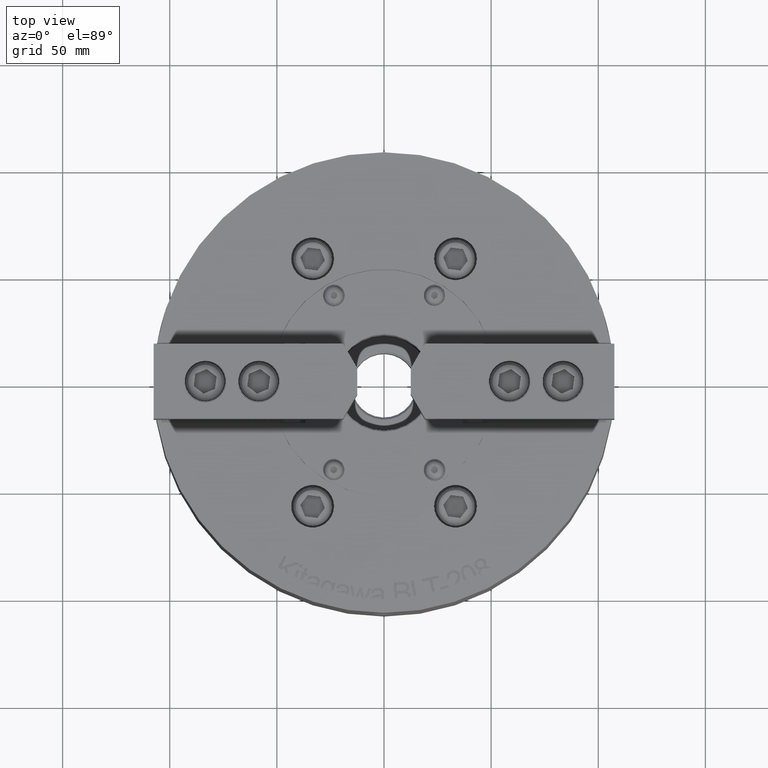
[diagram: clean part render]
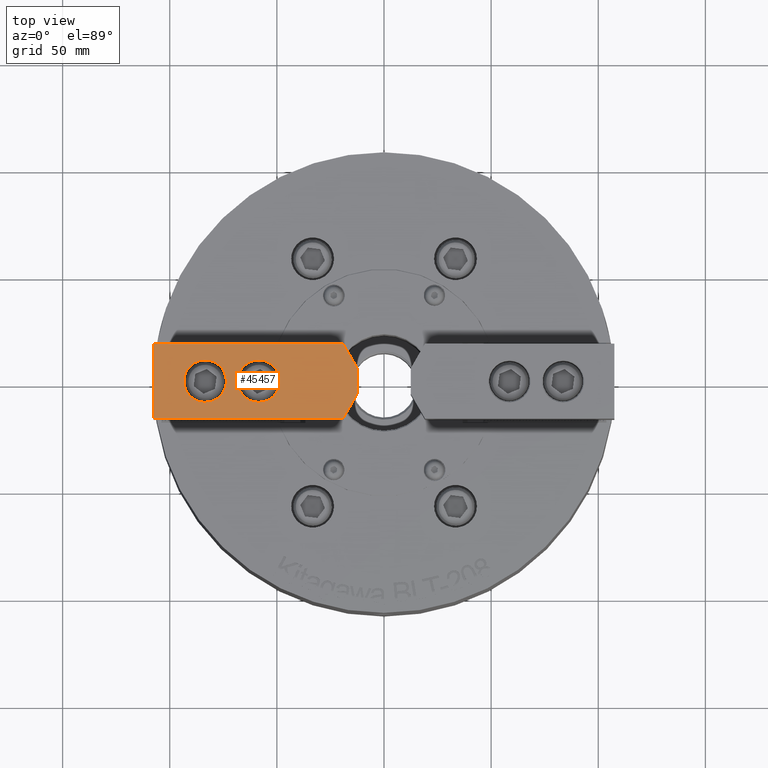
[diagram: same view with one face highlighted and labeled with its STEP entity id]
A machine part, top view. The second image highlights one B-rep face of the part: STEP entity #45457.
In plain terms, the highlighted planar face has unit normal (0, 0, -1).
Its self-contained STEP definition (entity closure, byte-faithful):
#1746=CIRCLE('',#48506,9.9);
#1747=CIRCLE('',#48507,9.9);
#13128=ORIENTED_EDGE('',*,*,#21609,.T.);
#13129=ORIENTED_EDGE('',*,*,#21602,.F.);
#13130=ORIENTED_EDGE('',*,*,#21136,.F.);
#13131=ORIENTED_EDGE('',*,*,#21597,.F.);
#13132=ORIENTED_EDGE('',*,*,#21151,.T.);
#13133=ORIENTED_EDGE('',*,*,#21600,.F.);
#13134=ORIENTED_EDGE('',*,*,#21610,.T.);
#13135=ORIENTED_EDGE('',*,*,#21611,.T.);
#21136=EDGE_CURVE('',#25953,#25954,#31150,.T.);
#21151=EDGE_CURVE('',#25968,#25967,#31164,.T.);
#21597=EDGE_CURVE('',#25968,#25953,#31560,.T.);
#21600=EDGE_CURVE('',#26176,#25967,#31563,.T.);
#21602=EDGE_CURVE('',#25954,#26178,#31565,.T.);
#21609=EDGE_CURVE('',#26176,#26178,#31570,.T.);
#21610=EDGE_CURVE('',#26181,#26181,#1746,.T.);
#21611=EDGE_CURVE('',#26182,#26182,#1747,.T.);
#25953=VERTEX_POINT('',#74585);
#25954=VERTEX_POINT('',#74587);
#25967=VERTEX_POINT('',#74617);
#25968=VERTEX_POINT('',#74619);
#26176=VERTEX_POINT('',#75377);
#26178=VERTEX_POINT('',#75383);
#26181=VERTEX_POINT('',#75396);
#26182=VERTEX_POINT('',#75398);
#31150=LINE('',#74586,#36683);
#31164=LINE('',#74618,#36697);
#31560=LINE('',#75372,#37093);
#31563=LINE('',#75378,#37096);
#31565=LINE('',#75382,#37098);
#31570=LINE('',#75394,#37103);
#36683=VECTOR('',#58587,1000.);
#36697=VECTOR('',#58609,1000.);
#37093=VECTOR('',#59307,1000.);
#37096=VECTOR('',#59312,1000.);
#37098=VECTOR('',#59316,1000.);
#37103=VECTOR('',#59329,1000.);
#39312=EDGE_LOOP('',(#13128,#13129,#13130,#13131,#13132,#13133));
#39313=EDGE_LOOP('',(#13134));
#39314=EDGE_LOOP('',(#13135));
#41711=FACE_BOUND('',#39312,.T.);
#41712=FACE_BOUND('',#39313,.T.);
#41713=FACE_BOUND('',#39314,.T.);
#43522=PLANE('',#48505);
#45457=ADVANCED_FACE('',(#41711,#41712,#41713),#43522,.F.);
#48505=AXIS2_PLACEMENT_3D('',#75393,#59327,#59328);
#48506=AXIS2_PLACEMENT_3D('',#75395,#59330,#59331);
#48507=AXIS2_PLACEMENT_3D('',#75397,#59332,#59333);
#58587=DIRECTION('',(1.,0.,0.));
#58609=DIRECTION('',(1.,0.,0.));
#59307=DIRECTION('',(0.,1.,0.));
#59312=DIRECTION('',(-0.5,-0.866025403784438,0.));
#59316=DIRECTION('',(0.5,-0.866025403784438,0.));
#59327=DIRECTION('',(0.,0.,-1.));
#59328=DIRECTION('',(0.,-1.,0.));
#59329=DIRECTION('',(0.,1.,0.));
#59330=DIRECTION('',(0.,0.,-1.));
#59331=DIRECTION('',(0.,-1.,0.));
#59332=DIRECTION('',(0.,0.,-1.));
#59333=DIRECTION('',(0.,-1.,0.));
#74585=CARTESIAN_POINT('',(-107.5,17.5000000000002,39.1999999999989));
#74586=CARTESIAN_POINT('',(-107.5,17.5000000000002,39.1999999999989));
#74587=CARTESIAN_POINT('',(-19.1395280956808,17.5000000000002,39.1999999999989));
#74617=CARTESIAN_POINT('',(-19.1395280956808,-17.4999999999998,39.1999999999989));
#74618=CARTESIAN_POINT('',(-107.5,-17.4999999999998,39.1999999999989));
#74619=CARTESIAN_POINT('',(-107.5,-17.4999999999998,39.1999999999989));
#75372=CARTESIAN_POINT('',(-107.5,-17.4999999999998,39.1999999999989));
#75377=CARTESIAN_POINT('',(-12.5000000000001,-5.99999999999981,39.1999999999989));
#75378=CARTESIAN_POINT('',(-12.5000000000001,-5.99999999999981,39.1999999999989));
#75382=CARTESIAN_POINT('',(-19.1395280956808,17.5000000000002,39.1999999999989));
#75383=CARTESIAN_POINT('',(-12.5000000000001,6.00000000000019,39.1999999999989));
#75393=CARTESIAN_POINT('',(-107.5,-17.4999999999998,39.1999999999989));
#75394=CARTESIAN_POINT('',(-12.5000000000001,-17.4999999999998,39.1999999999989));
#75395=CARTESIAN_POINT('',(-58.5000000000001,1.92277755683895E-13,39.1999999999989));
#75396=CARTESIAN_POINT('',(-58.5000000000001,-9.89999999999981,39.1999999999989));
#75397=CARTESIAN_POINT('',(-83.5000000000001,1.92277755683895E-13,39.1999999999989));
#75398=CARTESIAN_POINT('',(-83.5000000000001,-9.89999999999981,39.1999999999989));